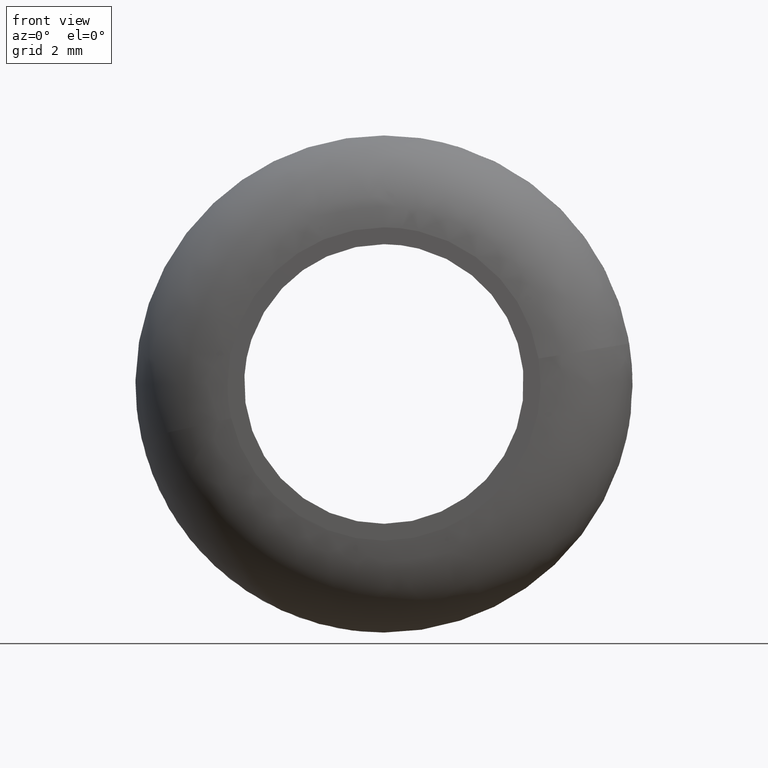
[diagram: clean part render]
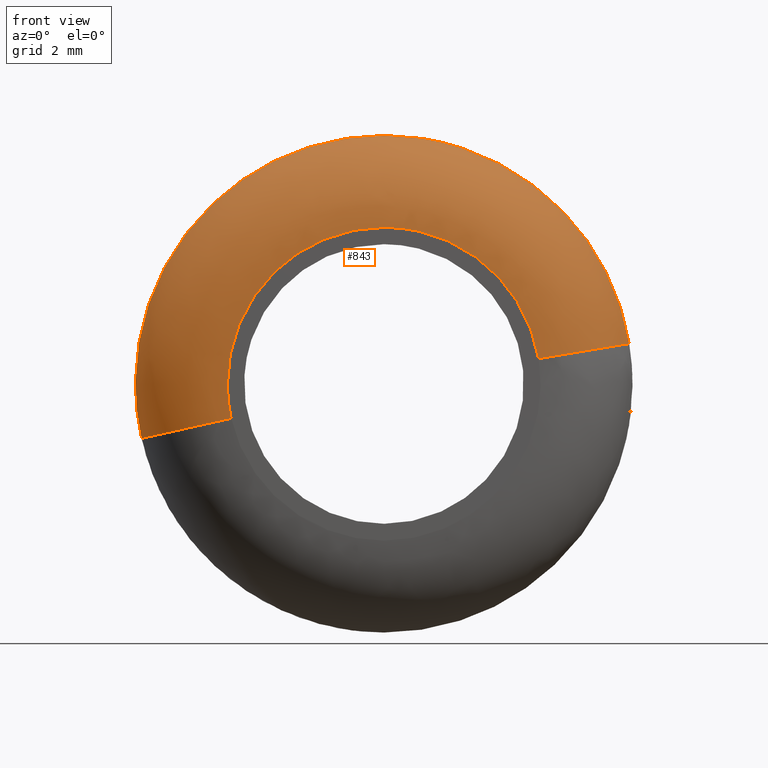
[diagram: same view with one face highlighted and labeled with its STEP entity id]
A machine part, front view. The second image highlights one B-rep face of the part: STEP entity #843.
In plain terms, the highlighted face is a freeform B-spline surface patch.
Its self-contained STEP definition (entity closure, byte-faithful):
#653=CARTESIAN_POINT('',(-7.806154549626388,2.500000008896763,-1.750414323469428));
#654=VERTEX_POINT('',#653);
#670=CARTESIAN_POINT('',(7.893489028008903,2.500003763030137,1.301091954507213));
#671=VERTEX_POINT('',#670);
#687=CARTESIAN_POINT('',(4.974831063378677,-8.939834E-017,0.820010081490540));
#688=VERTEX_POINT('',#687);
#689=CARTESIAN_POINT('',(7.893489028008905,2.500003763030138,1.301091954507212));
#690=CARTESIAN_POINT('',(7.476540246144787,-4.236501E-009,1.232368364594127));
#691=CARTESIAN_POINT('',(4.974831063378677,-8.939834E-017,0.820010081490540));
#699=(BOUNDED_CURVE()B_SPLINE_CURVE(2,(#689,#690,#691),.UNSPECIFIED.,.F.,.U.)B_SPLINE_CURVE_WITH_KNOTS((3,3),(-1.708625560262235,-0.300625566020885),.UNSPECIFIED.)CURVE()GEOMETRIC_REPRESENTATION_ITEM()RATIONAL_B_SPLINE_CURVE((0.894080231362465,0.681805578434915,0.891308979898982))REPRESENTATION_ITEM(''));
#700=EDGE_CURVE('',#671,#688,#699,.T.);
#719=CARTESIAN_POINT('',(-4.919789906633861,-8.079921E-017,-1.103189882610882));
#720=VERTEX_POINT('',#719);
#734=CARTESIAN_POINT('',(-7.806154549626388,2.500000008896764,-1.750414323469428));
#735=CARTESIAN_POINT('',(-7.393816711980934,1.527802E-010,-1.657953681993071));
#736=CARTESIAN_POINT('',(-4.919789906633861,-8.079921E-017,-1.103189882610882));
#744=(BOUNDED_CURVE()B_SPLINE_CURVE(2,(#734,#735,#736),.UNSPECIFIED.,.F.,.U.)B_SPLINE_CURVE_WITH_KNOTS((3,3),(-1.708624173956208,-0.300625565992657),.UNSPECIFIED.)CURVE()GEOMETRIC_REPRESENTATION_ITEM()RATIONAL_B_SPLINE_CURVE((0.873968203928213,0.666469109565893,0.871259698160253))REPRESENTATION_ITEM(''));
#745=EDGE_CURVE('',#654,#720,#744,.T.);
#750=CARTESIAN_POINT('',(7.918945171504888,2.689046502678746,1.305293545111998));
#751=CARTESIAN_POINT('',(6.613651626392891,2.689046502678747,9.224238716616886));
#752=CARTESIAN_POINT('',(-1.305293545111997,2.689046502678746,7.918945171504888));
#753=CARTESIAN_POINT('',(-9.224238716616886,2.689046502678747,6.613651626392891));
#754=CARTESIAN_POINT('',(-7.918945171504888,2.689046502678746,-1.305293545111997));
#755=CARTESIAN_POINT('',(-7.881588267084509,2.689046502678747,-1.531930135011582));
#756=CARTESIAN_POINT('',(-7.831330654658949,2.689046502678747,-1.756059237500456));
#757=CARTESIAN_POINT('',(7.624172083994697,-0.177699000824315,1.256705582944473));
#758=CARTESIAN_POINT('',(6.367466501050223,-0.177699000824316,8.880877666939169));
#759=CARTESIAN_POINT('',(-1.256705582944472,-0.177699000824315,7.624172083994697));
#760=CARTESIAN_POINT('',(-8.880877666939169,-0.177699000824316,6.367466501050225));
#761=CARTESIAN_POINT('',(-7.624172083994697,-0.177699000824315,-1.256705582944472));
#762=CARTESIAN_POINT('',(-7.588205744834888,-0.177699000824315,-1.474905901863438));
#763=CARTESIAN_POINT('',(-7.539818910810327,-0.177699000824315,-1.690692071536050));
#764=CARTESIAN_POINT('',(4.786065137708119,0.006106330215611,0.788895464665627));
#765=CARTESIAN_POINT('',(3.997169673042491,0.006106330215611,5.574960602373744));
#766=CARTESIAN_POINT('',(-0.788895464665627,0.006106330215611,4.786065137708119));
#767=CARTESIAN_POINT('',(-5.574960602373744,0.006106330215611,3.997169673042491));
#768=CARTESIAN_POINT('',(-4.786065137708119,0.006106330215611,-0.788895464665626));
#769=CARTESIAN_POINT('',(-4.763487310228970,0.006106330215611,-0.925870460495952));
#770=CARTESIAN_POINT('',(-4.733112531577900,0.006106330215611,-1.061329976951217));
#778=(BOUNDED_SURFACE()B_SPLINE_SURFACE(2,2,((#750,#757,#764),(#751,#758,#765),(#752,#759,#766),(#753,#760,#767),(#754,#761,#768),(#755,#762,#769),(#756,#763,#770)),.UNSPECIFIED.,.F.,.F.,.U.)B_SPLINE_SURFACE_WITH_KNOTS((3,2,2,3),(3,3),(0.0,13.297582717101010,26.595165434202030,27.127068235623540),(0.0,4.830464040311016),.UNSPECIFIED.)GEOMETRIC_REPRESENTATION_ITEM()RATIONAL_B_SPLINE_SURFACE(((0.916338806207898,0.659685411359928,0.913290738817818),(0.647949383733990,0.466468027822443,0.645794074612951),(0.916338806207898,0.659685411359928,0.913290738817818),(0.647949383733990,0.466468027822443,0.645794074612951),(0.916338806207898,0.659685411359928,0.913290738817818),(0.905603239547185,0.651956723389087,0.902590882453811),(0.895726517400271,0.644846329866261,0.892747013782590)))REPRESENTATION_ITEM('')SURFACE());
#779=CARTESIAN_POINT('',(0.0,2.500000000000000,8.0));
#780=VERTEX_POINT('',#779);
#781=CARTESIAN_POINT('',(0.0,2.500000000000000,8.0));
#782=CARTESIAN_POINT('',(-8.0,2.500000000000000,8.0));
#783=CARTESIAN_POINT('',(-8.0,2.500000000000000,-3.061516E-016));
#784=CARTESIAN_POINT('',(-8.0,2.500000000000000,-0.885940637268608));
#785=CARTESIAN_POINT('',(-7.806154549626388,2.500000008896763,-1.750414323469428));
#793=(BOUNDED_CURVE()B_SPLINE_CURVE(2,(#781,#782,#783,#784,#785),.UNSPECIFIED.,.F.,.U.)B_SPLINE_CURVE_WITH_KNOTS((3,2,3),(0.500000000000000,0.750000000000000,0.787436176722882),.UNSPECIFIED.)CURVE()GEOMETRIC_REPRESENTATION_ITEM()RATIONAL_B_SPLINE_CURVE((1.0,0.707106781186548,1.0,0.956140790798264,0.925416950449344))REPRESENTATION_ITEM(''));
#794=EDGE_CURVE('',#780,#654,#793,.T.);
#795=ORIENTED_EDGE('',*,*,#794,.T.);
#796=ORIENTED_EDGE('',*,*,#745,.T.);
#797=CARTESIAN_POINT('',(0.0,-9.261624E-016,5.041960000000000));
#798=VERTEX_POINT('',#797);
#799=CARTESIAN_POINT('',(0.0,-9.261624E-016,5.041960000000000));
#800=CARTESIAN_POINT('',(-5.041960000000000,-9.261624E-016,5.041960000000000));
#801=CARTESIAN_POINT('',(-5.041960000000000,-9.261624E-016,-3.061516E-016));
#802=CARTESIAN_POINT('',(-5.041960000000000,-9.261624E-016,-0.558359656962267));
#803=CARTESIAN_POINT('',(-4.919789906633862,-8.079921E-017,-1.103189882610882));
#811=(BOUNDED_CURVE()B_SPLINE_CURVE(2,(#799,#800,#801,#802,#803),.UNSPECIFIED.,.F.,.U.)B_SPLINE_CURVE_WITH_KNOTS((3,2,3),(0.500000000000000,0.750000000000000,0.787436176724607),.UNSPECIFIED.)CURVE()GEOMETRIC_REPRESENTATION_ITEM()RATIONAL_B_SPLINE_CURVE((1.0,0.707106781186548,1.0,0.956140790796242,0.925416950446512))REPRESENTATION_ITEM(''));
#812=EDGE_CURVE('',#798,#720,#811,.T.);
#813=ORIENTED_EDGE('',*,*,#812,.F.);
#814=CARTESIAN_POINT('',(4.974831063378677,-8.939834E-017,0.820010081490540));
#815=CARTESIAN_POINT('',(4.278919694035579,-9.261624E-016,5.041960000000000));
#816=CARTESIAN_POINT('',(0.0,-9.261624E-016,5.041960000000000));
#824=(BOUNDED_CURVE()B_SPLINE_CURVE(2,(#814,#815,#816),.UNSPECIFIED.,.F.,.U.)B_SPLINE_CURVE_WITH_KNOTS((3,3),(0.277993891203424,0.500000000000000),.UNSPECIFIED.)CURVE()GEOMETRIC_REPRESENTATION_ITEM()RATIONAL_B_SPLINE_CURVE((0.941751131918511,0.739903664793285,1.0))REPRESENTATION_ITEM(''));
#825=EDGE_CURVE('',#688,#798,#824,.T.);
#826=ORIENTED_EDGE('',*,*,#825,.F.);
#827=ORIENTED_EDGE('',*,*,#700,.F.);
#828=CARTESIAN_POINT('',(7.893489028008903,2.500003763030137,1.301091954507212));
#829=CARTESIAN_POINT('',(6.789300788821883,2.500001881515069,8.000000047313900));
#830=CARTESIAN_POINT('',(0.0,2.500000000000000,8.0));
#838=(BOUNDED_CURVE()B_SPLINE_CURVE(2,(#828,#829,#830),.UNSPECIFIED.,.F.,.U.)B_SPLINE_CURVE_WITH_KNOTS((3,3),(0.277993776009529,0.500000000000000),.UNSPECIFIED.)CURVE()GEOMETRIC_REPRESENTATION_ITEM()RATIONAL_B_SPLINE_CURVE((0.941751341386709,0.739903529835243,1.0))REPRESENTATION_ITEM(''));
#839=EDGE_CURVE('',#671,#780,#838,.T.);
#840=ORIENTED_EDGE('',*,*,#839,.T.);
#841=EDGE_LOOP('',(#795,#796,#813,#826,#827,#840));
#842=FACE_OUTER_BOUND('',#841,.T.);
#843=ADVANCED_FACE('',(#842),#778,.T.);